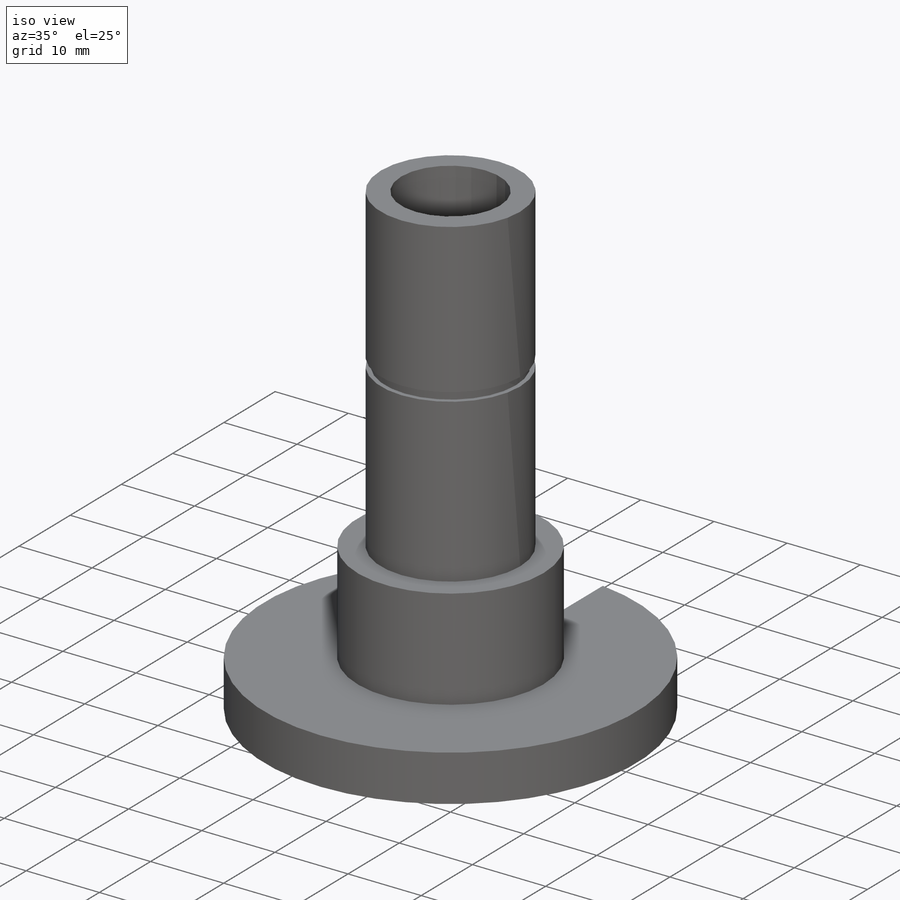
[diagram: iso view]
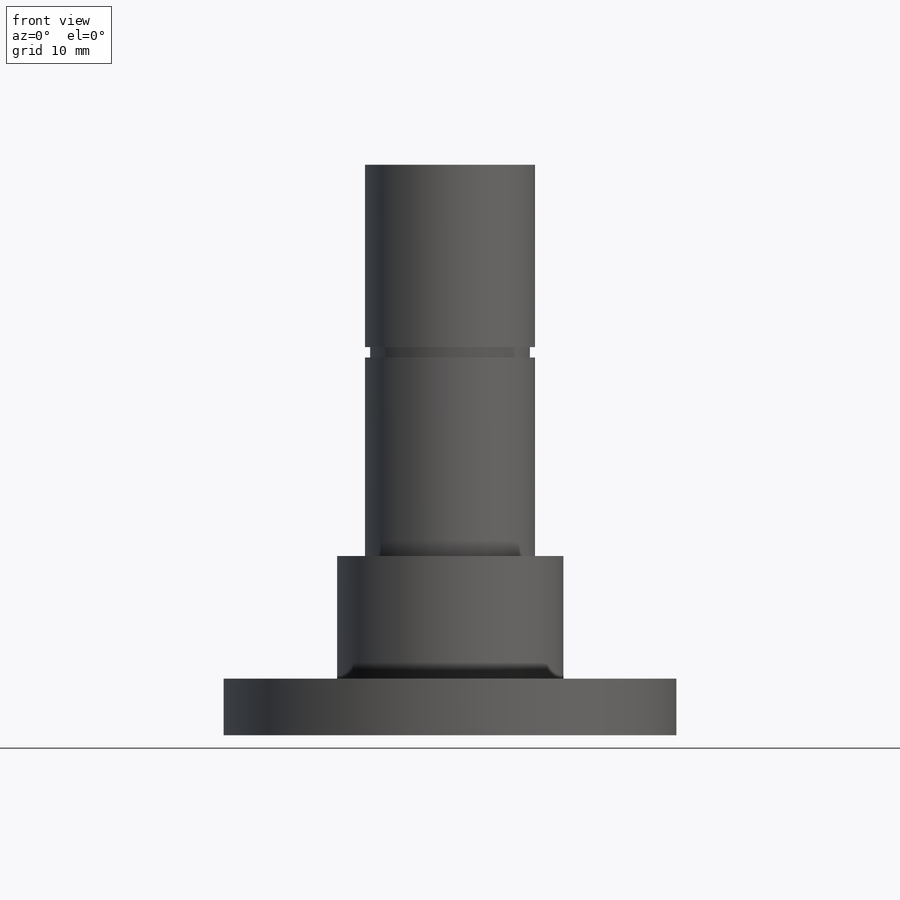
[diagram: front view]
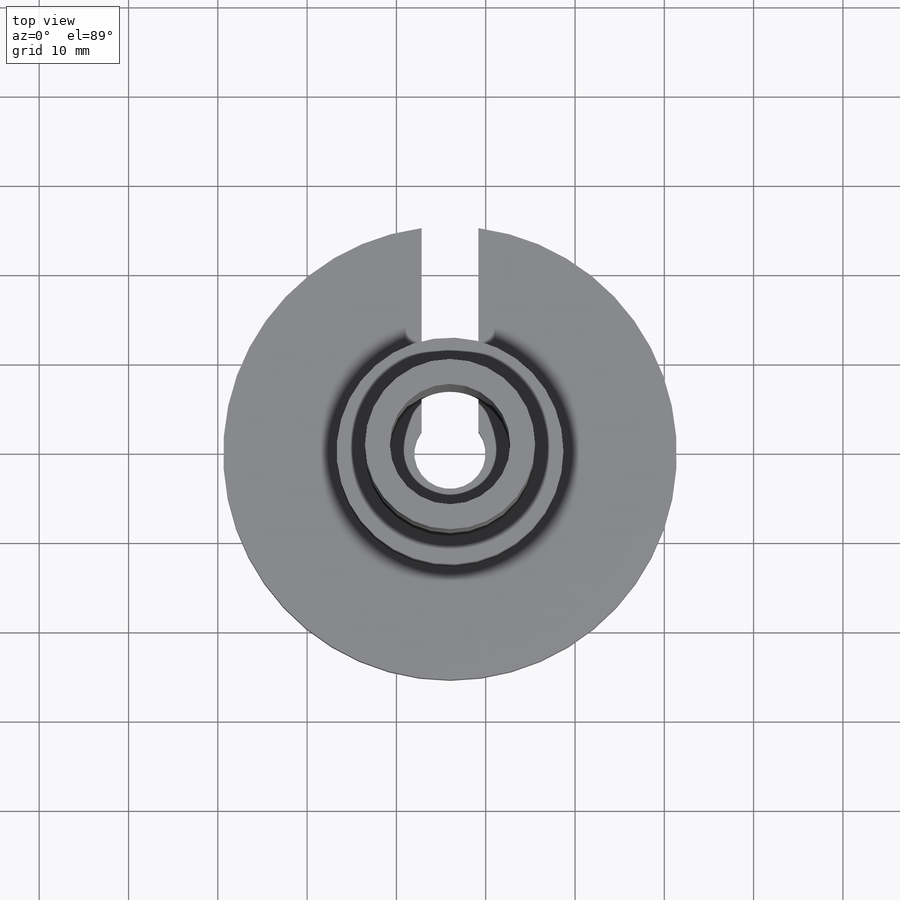
[diagram: top view]
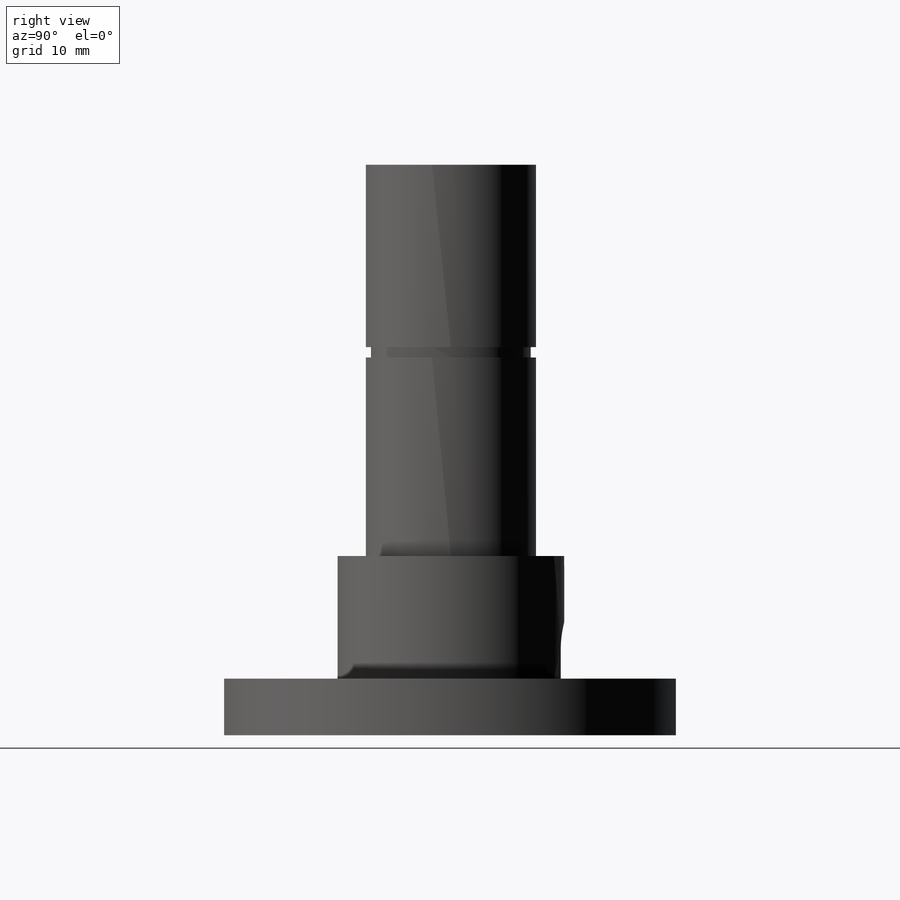
[diagram: right view]
SOLIDWORKS PART (.sldprt)
format: sldprt  version: not decoded by parser v0  size: 188,928 bytes
history: native  units: mm
features: sketch x3, cut_extrude x2, material x1, revolve x1, plane x1, fillet x1 (+12 scaffold rows collapsed)
feature tree (21):
  scaffold x12  (default folders/planes/origin — collapsed)
  material  "Material <not specified>"
  sketch  "Sketch2"  dims[c1.D1=6.35mm c1.D2=6.35mm c1.D3=50.8mm c1.D4=25.4mm c1.D5=15.875mm c1.D6=4.0mm c1.D7=7.0mm c1.D8=~4.530485mm c2.D8=90.0deg c3.D8=9.525mm c3.D9=6.35mm c3.D4=25.4mm c3.D7=~6.746875mm c4.D8=9.525mm c4.D3=43.815mm c4.D5=12.7mm c4.D2=20.081mm]
  revolve  "Revolve1"  Angle=360deg
  plane  "Plane1"
  sketch  "Sketch4"  dims[D1=6.35mm D2=12.7mm]
  cut_extrude  "Cut-Extrude1"  Depth=38.1mm
  sketch  "Sketch5"  dims[D1=17.8816mm D2=22.225mm]
  cut_extrude  "Cut-Extrude2"  Depth=1.1684mm
  fillet  "Fillet1"  Radius=3.175mm
decode coverage: 7 of 7 modeling features carry decoded parameters
note: ~ marks probable driven/reference dimensions
note: suppression state not decoded; provenance and decode notes live in map.json
